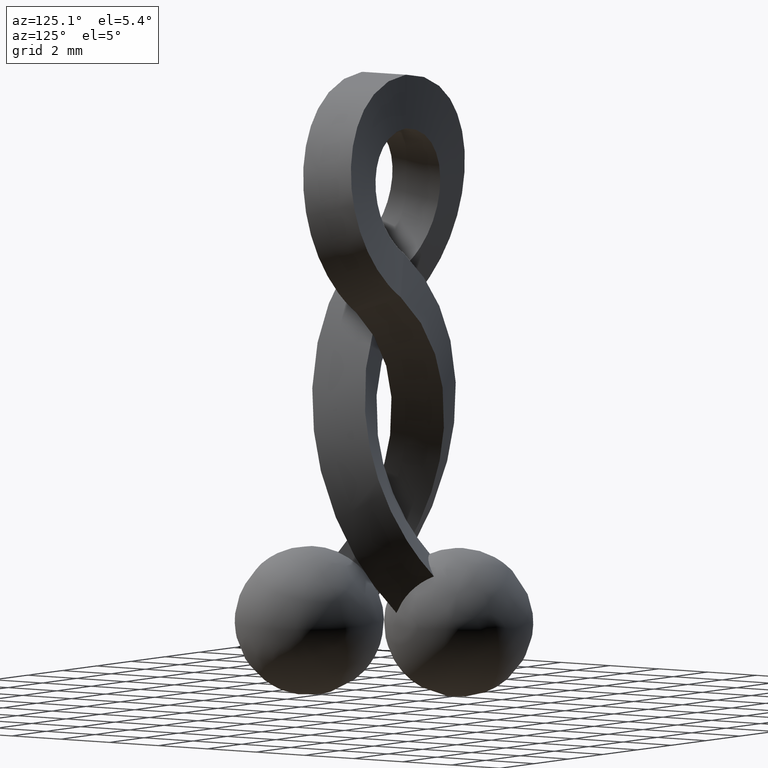
[diagram: clean part render]
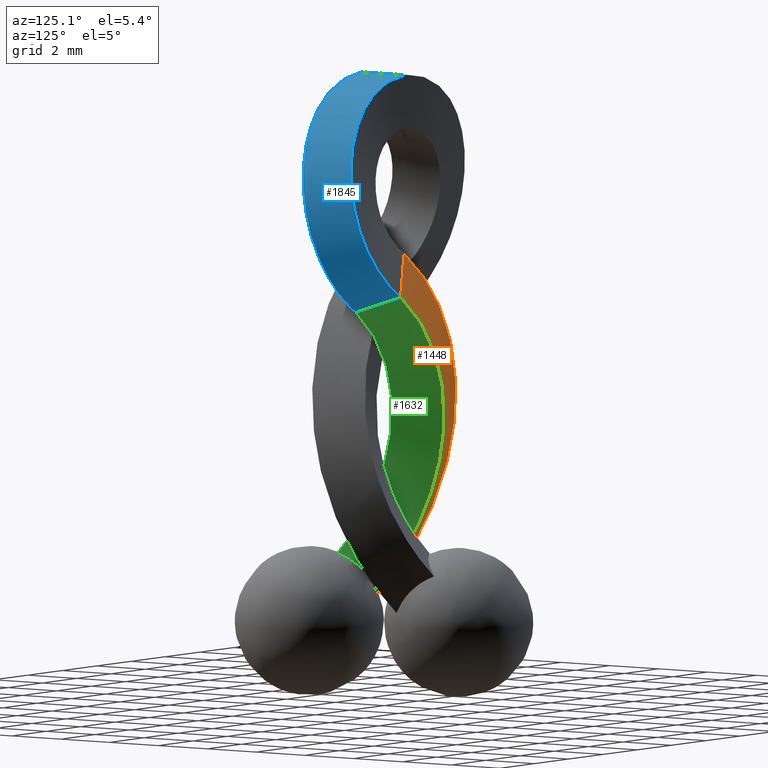
[diagram: same view with three faces highlighted in distinct colors, each labeled with its STEP entity id]
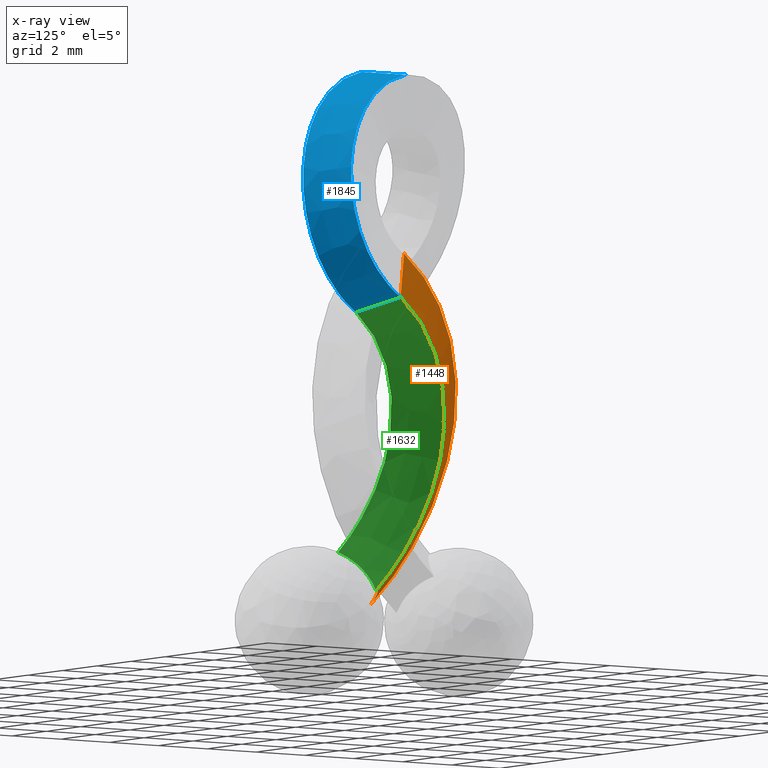
[diagram: x-ray of the same camera — body ghosted, the three highlighted faces saturated]
A machine part, auxiliary view with three faces highlighted in distinct colors.
The next image is the same camera in x-ray (body ghosted, the three faces saturated) — at least one of them is partly hidden behind the body in this view.
Their STEP definitions:

[orange] entity #1448 — the highlighted face is a freeform B-spline surface patch.
#209=CARTESIAN_POINT('',(0.187365948330412,-0.197707666171950,-13.245755313469999));
#210=VERTEX_POINT('',#209);
#245=CARTESIAN_POINT('',(-1.116100666478800,-1.293284365072966,-13.853364843217561));
#246=VERTEX_POINT('',#245);
#264=CARTESIAN_POINT('',(-1.116100666478800,-1.293284365072966,-13.853364843217561));
#265=CARTESIAN_POINT('',(-1.051939149386710,-1.184084527324290,-13.761739130561841));
#266=CARTESIAN_POINT('',(-0.975101844833864,-1.078532928553020,-13.679197981412040));
#267=CARTESIAN_POINT('',(-0.841521293309122,-0.924924080941385,-13.569271752839500));
#268=CARTESIAN_POINT('',(-0.793916599698335,-0.874516004852700,-13.534958756038350));
#269=CARTESIAN_POINT('',(-0.717758949630012,-0.800076888315602,-13.487157152708241));
#270=CARTESIAN_POINT('',(-0.691503831554263,-0.775394316801432,-13.471797919685431));
#271=CARTESIAN_POINT('',(-0.637937746768737,-0.726931430986019,-13.442644929944910));
#272=CARTESIAN_POINT('',(-0.610592293438438,-0.703111769414878,-13.428823073083979));
#273=CARTESIAN_POINT('',(-0.471107238251255,-0.586022609372301,-13.363435469588890));
#274=CARTESIAN_POINT('',(-0.350783818659769,-0.498700792684005,-13.322944776868320));
#275=CARTESIAN_POINT('',(-0.157135748750858,-0.377261716198525,-13.280070135765010));
#276=CARTESIAN_POINT('',(-0.090092124171693,-0.338249544083643,-13.268755335018909));
#277=CARTESIAN_POINT('',(0.046537282812526,-0.264730582817628,-13.252546318848120));
#278=CARTESIAN_POINT('',(0.116245415395587,-0.230121547297511,-13.247595765745590));
#279=CARTESIAN_POINT('',(0.187365948330412,-0.197707666171950,-13.245755313469999));
#280=B_SPLINE_CURVE_WITH_KNOTS('',3,(#264,#265,#266,#267,#268,#269,#270,#271,#272,#273,#274,#275,#276,#277,#278,#279),.UNSPECIFIED.,.F.,.U.,(4,2,2,2,2,2,2,4),(0.0,0.250000000000001,0.375000000000001,0.437500000000002,0.500000000000002,0.750000000000001,0.875000000000000,1.0),.UNSPECIFIED.);
#281=EDGE_CURVE('',#246,#210,#280,.T.);
#1331=CARTESIAN_POINT('',(1.250997394977785,1.648943568527589,-1.679905793471535));
#1332=CARTESIAN_POINT('',(1.621839122723317,1.842574230625029,-2.118367525646199));
#1333=CARTESIAN_POINT('',(1.992680850468845,2.036204892722486,-2.556829257820848));
#1334=CARTESIAN_POINT('',(2.363522578214372,2.229835554819927,-2.995290989995513));
#1335=CARTESIAN_POINT('',(1.228120817652917,1.651534840071966,-1.696786008469045));
#1336=CARTESIAN_POINT('',(1.598680056511240,1.845194873801081,-2.135464696391233));
#1337=CARTESIAN_POINT('',(1.969239295369562,2.038854907530203,-2.574143384313400));
#1338=CARTESIAN_POINT('',(2.339798534227880,2.232514941259319,-3.012822072235588));
#1339=CARTESIAN_POINT('',(1.204858485918635,1.654174392063804,-1.713936003400285));
#1340=CARTESIAN_POINT('',(1.575260104700396,1.847853925289049,-2.152725662932011));
#1341=CARTESIAN_POINT('',(1.945661723482160,2.041533458514293,-2.591515322463712));
#1342=CARTESIAN_POINT('',(2.316063342263917,2.235212991739541,-3.030304981995438));
#1343=CARTESIAN_POINT('',(1.051119438363262,1.671698860738548,-1.827020225537889));
#1344=CARTESIAN_POINT('',(1.425592504047764,1.865002914068105,-2.262527879023286));
#1345=CARTESIAN_POINT('',(1.800065569732230,2.058306967397675,-2.698035532508762));
#1346=CARTESIAN_POINT('',(2.174538635416729,2.251611020727231,-3.133543185994175));
#1347=CARTESIAN_POINT('',(0.905331565183985,1.686682722956729,-1.939552612296885));
#1348=CARTESIAN_POINT('',(1.289829574584254,1.879155174277839,-2.366677951473207));
#1349=CARTESIAN_POINT('',(1.674327583984510,2.071627625598937,-2.793803290649579));
#1350=CARTESIAN_POINT('',(2.058825593384789,2.264100076920014,-3.220928629825850));
#1351=CARTESIAN_POINT('',(0.374399363223709,1.733296400736359,-2.375156250922862));
#1352=CARTESIAN_POINT('',(0.784825541600758,1.924120733965117,-2.778972559420545));
#1353=CARTESIAN_POINT('',(1.195251719977834,2.114945067193888,-3.182788867918087));
#1354=CARTESIAN_POINT('',(1.605677898354852,2.305769400422724,-3.586605176415718));
#1355=CARTESIAN_POINT('',(-0.495209413692294,1.770699031932914,-3.214851318049503));
#1356=CARTESIAN_POINT('',(-0.042631161961025,1.960894531129384,-3.574127616650814));
#1357=CARTESIAN_POINT('',(0.409947089770205,2.151090030325883,-3.933403915252340));
#1358=CARTESIAN_POINT('',(0.862525341501510,2.341285529522209,-4.292680213854013));
#1359=CARTESIAN_POINT('',(-1.193607924372798,1.703645794864529,-4.203905079947227));
#1360=CARTESIAN_POINT('',(-0.707962947606726,1.898498327814846,-4.511548950281964));
#1361=CARTESIAN_POINT('',(-0.222317970840671,2.093350860765094,-4.819192820616476));
#1362=CARTESIAN_POINT('',(0.263327005925418,2.288203393715499,-5.126836690951098));
#1363=CARTESIAN_POINT('',(-2.190198932032244,1.489370625824567,-5.999614895971046));
#1364=CARTESIAN_POINT('',(-1.658329362050116,1.697173761336061,-6.214207043483224));
#1365=CARTESIAN_POINT('',(-1.126459792067992,1.904976896847685,-6.428799190995925));
#1366=CARTESIAN_POINT('',(-0.594590222085865,2.112780032358915,-6.643391338508623));
#1367=CARTESIAN_POINT('',(-2.582548973555014,1.212519297309548,-7.330449936081854));
#1368=CARTESIAN_POINT('',(-2.034040181010712,1.435655198972743,-7.476961528563183));
#1369=CARTESIAN_POINT('',(-1.485531388466672,1.658791100636071,-7.623473121043474));
#1370=CARTESIAN_POINT('',(-0.937022595922627,1.881927002299135,-7.769984713523761));
#1371=CARTESIAN_POINT('',(-2.738264674189206,0.450730014212593,-9.971509800327373));
#1372=CARTESIAN_POINT('',(-2.188432078672312,0.714611237159715,-9.984501143055585));
#1373=CARTESIAN_POINT('',(-1.638599483155115,0.978492460106687,-9.997492485784791));
#1374=CARTESIAN_POINT('',(-1.088766887637973,1.242373683053934,-10.010483828514021));
#1375=CARTESIAN_POINT('',(-2.392379661954175,-0.256613487255500,-11.881839034839540));
#1376=CARTESIAN_POINT('',(-1.864921381167240,0.044334038123233,-11.799420443237100));
#1377=CARTESIAN_POINT('',(-1.337463100380630,0.345281563502483,-11.717001851635890));
#1378=CARTESIAN_POINT('',(-0.810004819594130,0.646229088880802,-11.634583260033040));
#1379=CARTESIAN_POINT('',(-1.430669774141974,-1.072384817551527,-13.463100613227789));
#1380=CARTESIAN_POINT('',(-0.956100005331421,-0.729569155989037,-13.303427348111519));
#1381=CARTESIAN_POINT('',(-0.481530236520313,-0.386753494427110,-13.143754082993610));
#1382=CARTESIAN_POINT('',(-0.006960467709508,-0.043937832864306,-12.984080817877420));
#1383=CARTESIAN_POINT('',(-1.075349115802295,-1.333730370942182,-13.917503742380820));
#1384=CARTESIAN_POINT('',(-0.619995522014444,-0.977575410494956,-13.735831096333831));
#1385=CARTESIAN_POINT('',(-0.164641928225385,-0.621420450048644,-13.554158450284341));
#1386=CARTESIAN_POINT('',(0.290711665562673,-0.265265489601053,-13.372485804237369));
#1387=B_SPLINE_SURFACE_WITH_KNOTS('',3,3,((#1331,#1335,#1339,#1343,#1347,#1351,#1355,#1359,#1363,#1367,#1371,#1375,#1379,#1383),(#1332,#1336,#1340,#1344,#1348,#1352,#1356,#1360,#1364,#1368,#1372,#1376,#1380,#1384),(#1333,#1337,#1341,#1345,#1349,#1353,#1357,#1361,#1365,#1369,#1373,#1377,#1381,#1385),(#1334,#1338,#1342,#1346,#1350,#1354,#1358,#1362,#1366,#1370,#1374,#1378,#1382,#1386)),.UNSPECIFIED.,.F.,.F.,.U.,(4,4),(4,2,2,1,2,2,1,4),(0.0,1.818072055312638),(0.0,0.106390014873145,0.634835904268965,2.220173572456424,4.333957130039702,8.561524245206259,12.789091360372820,14.734910422062290),.UNSPECIFIED.);
#1388=ORIENTED_EDGE('',*,*,#281,.F.);
#1389=CARTESIAN_POINT('',(1.197166862828958,1.658578816912535,-1.730195228560345));
#1390=VERTEX_POINT('',#1389);
#1391=CARTESIAN_POINT('',(1.197166862828958,1.658578816912535,-1.730195228560345));
#1392=CARTESIAN_POINT('',(1.193048124222506,1.659047703463243,-1.733226724150942));
#1393=CARTESIAN_POINT('',(1.188871184843763,1.659523522335898,-1.736300063238846));
#1394=CARTESIAN_POINT('',(1.056702326652314,1.674590164805526,-1.833514082299842));
#1395=CARTESIAN_POINT('',(0.911060054960940,1.689564906574013,-1.945913936628654));
#1396=CARTESIAN_POINT('',(0.645781964092629,1.712852819887063,-2.163567030734261));
#1397=CARTESIAN_POINT('',(0.515978598182526,1.722399896108490,-2.276056201850243));
#1398=CARTESIAN_POINT('',(0.135731945107929,1.744703483129441,-2.623938594197198));
#1399=CARTESIAN_POINT('',(-0.105538211706550,1.751114642366290,-2.869760979798006));
#1400=CARTESIAN_POINT('',(-0.787606701772308,1.744842982440880,-3.643766208971925));
#1401=CARTESIAN_POINT('',(-1.186364275153282,1.706551756681532,-4.208491672889468));
#1402=CARTESIAN_POINT('',(-2.182286333342149,1.492469752243953,-6.002818310297073));
#1403=CARTESIAN_POINT('',(-2.574391652711865,1.215843849951445,-7.332639353026374));
#1404=CARTESIAN_POINT('',(-2.730072781926019,0.454639363183059,-9.971740530448306));
#1405=CARTESIAN_POINT('',(-2.493520313447824,-0.029312003120211,-11.278846095434471));
#1406=CARTESIAN_POINT('',(-1.737220043088290,-0.799416434491244,-12.939062034076450));
#1407=CARTESIAN_POINT('',(-1.450766828229126,-1.044184820358264,-13.415832169242790));
#1408=CARTESIAN_POINT('',(-1.116100666478800,-1.293284365072966,-13.853364843217561));
#1409=B_SPLINE_CURVE_WITH_KNOTS('',3,(#1391,#1392,#1393,#1394,#1395,#1396,#1397,#1398,#1399,#1400,#1401,#1402,#1403,#1404,#1405,#1406,#1407,#1408),.UNSPECIFIED.,.F.,.U.,(4,2,2,2,2,2,2,2,4),(-0.001036884601919,0.0,0.031250000000000,0.062500000000000,0.125000000000000,0.250000000000000,0.500000000000000,0.750000000000000,0.859901148939581),.UNSPECIFIED.);
#1410=EDGE_CURVE('',#1390,#246,#1409,.T.);
#1411=ORIENTED_EDGE('',*,*,#1410,.F.);
#1412=CARTESIAN_POINT('',(2.221295444274015,2.242601739820090,-3.089225805483630));
#1413=VERTEX_POINT('',#1412);
#1414=CARTESIAN_POINT('',(2.221295444274015,2.242601739820090,-3.089225805483630));
#1415=CARTESIAN_POINT('',(2.135455382526934,2.193562330840395,-2.975080559637316));
#1416=CARTESIAN_POINT('',(2.049552932902321,2.144534037977005,-2.860977643932547));
#1417=CARTESIAN_POINT('',(1.963616822598833,2.095511858400784,-2.746897586311317));
#1418=CARTESIAN_POINT('',(1.877680718425901,2.046489682321735,-2.632817536828392));
#1419=CARTESIAN_POINT('',(1.791710777485291,1.997473642615616,-2.518760446391113));
#1420=CARTESIAN_POINT('',(1.705734442494077,1.948458959118404,-2.404707618855502));
#1421=CARTESIAN_POINT('',(1.536234190478744,1.851827703481859,-2.179855245090990));
#1422=CARTESIAN_POINT('',(1.366872048778237,1.755174081214445,-1.954907805158415));
#1423=CARTESIAN_POINT('',(1.197166862828958,1.658578816912535,-1.730195228560345));
#1424=B_SPLINE_CURVE_WITH_KNOTS('',3,(#1414,#1415,#1416,#1417,#1418,#1419,#1420,#1421,#1422,#1423),.UNSPECIFIED.,.F.,.U.,(4,3,3,4),(0.0,0.000452979638718,0.000905959226432,0.001798997456039),.UNSPECIFIED.);
#1425=EDGE_CURVE('',#1413,#1390,#1424,.T.);
#1426=ORIENTED_EDGE('',*,*,#1425,.F.);
#1427=CARTESIAN_POINT('',(2.221295444274015,2.242601739820090,-3.089225805483630));
#1428=CARTESIAN_POINT('',(2.125969881719033,2.253342588289417,-3.159748152407557));
#1429=CARTESIAN_POINT('',(2.032024838796250,2.263206183396222,-3.231588228358451));
#1430=CARTESIAN_POINT('',(1.826337623907148,2.282109573049236,-3.397603924858196));
#1431=CARTESIAN_POINT('',(1.715331819397314,2.290751414845497,-3.492255637011788));
#1432=CARTESIAN_POINT('',(1.390014400105739,2.311298287032385,-3.785134638820405));
#1433=CARTESIAN_POINT('',(1.183410894042757,2.317818127735772,-3.992298012229599));
#1434=CARTESIAN_POINT('',(0.598756995098599,2.315709234347855,-4.645168035644137));
#1435=CARTESIAN_POINT('',(0.256116774605315,2.285323747065436,-5.122260719066810));
#1436=CARTESIAN_POINT('',(-0.602502116356110,2.109706175388952,-6.640201649130565));
#1437=CARTESIAN_POINT('',(-0.945183225299918,1.878621388537423,-7.767807641083852));
#1438=CARTESIAN_POINT('',(-1.096932855810851,1.238441243465682,-10.010318306804891));
#1439=CARTESIAN_POINT('',(-0.905876338536688,0.829873381637522,-11.123375193984421));
#1440=CARTESIAN_POINT('',(-0.289382292982021,0.191493173761474,-12.511152809843830));
#1441=CARTESIAN_POINT('',(-0.069088392965085,-0.001293906045880,-12.892555423470920));
#1442=CARTESIAN_POINT('',(0.187365948330412,-0.197707666171950,-13.245755313469999));
#1443=B_SPLINE_CURVE_WITH_KNOTS('',3,(#1427,#1428,#1429,#1430,#1431,#1432,#1433,#1434,#1435,#1436,#1437,#1438,#1439,#1440,#1441,#1442),.UNSPECIFIED.,.F.,.U.,(4,2,2,2,2,2,2,4),(0.133391573818187,0.158830783371632,0.190080783371632,0.252580783371632,0.377580783371632,0.627580783371632,0.877580783371632,0.980010228467055),.UNSPECIFIED.);
#1444=EDGE_CURVE('',#1413,#210,#1443,.T.);
#1445=ORIENTED_EDGE('',*,*,#1444,.T.);
#1446=EDGE_LOOP('',(#1388,#1411,#1426,#1445));
#1447=FACE_OUTER_BOUND('',#1446,.T.);
#1448=ADVANCED_FACE('',(#1447),#1387,.T.);

[blue] entity #1845 — the highlighted face is a freeform B-spline surface patch.
#1242=CARTESIAN_POINT('',(0.037481139247082,-0.901063248153303,4.149609535830205));
#1243=VERTEX_POINT('',#1242);
#1281=CARTESIAN_POINT('',(0.040696104870746,0.898848638762552,4.150045592310344));
#1282=VERTEX_POINT('',#1281);
#1321=CARTESIAN_POINT('',(0.037481139247082,-0.901063248153303,4.149609535830205));
#1322=CARTESIAN_POINT('',(0.038728928112110,-0.301092624907741,4.149725905478709));
#1323=CARTESIAN_POINT('',(0.039800559339484,0.298878031482434,4.149871121260658));
#1324=CARTESIAN_POINT('',(0.040696104870746,0.898848638762552,4.150045592310344));
#1325=QUASI_UNIFORM_CURVE('',3,(#1321,#1322,#1323,#1324),.UNSPECIFIED.,.F.,.U.);
#1326=EDGE_CURVE('',#1243,#1282,#1325,.T.);
#1412=CARTESIAN_POINT('',(2.221295444274015,2.242601739820090,-3.089225805483630));
#1413=VERTEX_POINT('',#1412);
#1596=CARTESIAN_POINT('',(2.411460444258520,0.551425846800978,-3.675844381211625));
#1597=VERTEX_POINT('',#1596);
#1598=CARTESIAN_POINT('',(2.221295444274015,2.242601739820090,-3.089225805483630));
#1599=CARTESIAN_POINT('',(2.250904984772668,1.961030993496815,-3.188514764424261));
#1600=CARTESIAN_POINT('',(2.281459031402204,1.679323473205865,-3.287123057796391));
#1601=CARTESIAN_POINT('',(2.329310285238189,1.256484355535253,-3.433555516878741));
#1602=CARTESIAN_POINT('',(2.345581460064278,1.115493940590159,-3.482131176732441));
#1603=CARTESIAN_POINT('',(2.370216482880057,0.903977865894764,-3.554825646876809));
#1604=CARTESIAN_POINT('',(2.378462696947199,0.833467892868871,-3.579031556237958));
#1605=CARTESIAN_POINT('',(2.394951340205510,0.692448318168596,-3.627445784694800));
#1606=CARTESIAN_POINT('',(2.403100520628842,0.621951036063212,-3.651722814319169));
#1607=CARTESIAN_POINT('',(2.411460444258520,0.551425846800978,-3.675844381211625));
#1608=B_SPLINE_CURVE_WITH_KNOTS('',3,(#1598,#1599,#1600,#1601,#1602,#1603,#1604,#1605,#1606,#1607),.UNSPECIFIED.,.F.,.U.,(4,2,2,2,4),(0.0,0.500000000000000,0.750000000000000,0.875000000000000,1.0),.UNSPECIFIED.);
#1609=EDGE_CURVE('',#1413,#1597,#1608,.T.);
#1725=CARTESIAN_POINT('',(-0.037471593387728,0.910148728138404,4.150338607856991));
#1726=CARTESIAN_POINT('',(-0.038554309345859,0.304120975269487,4.150511870621430));
#1727=CARTESIAN_POINT('',(-0.039637025303991,-0.301906777599432,4.150685133385865));
#1728=CARTESIAN_POINT('',(-0.040719741262122,-0.907934530468349,4.150858396150304));
#1729=CARTESIAN_POINT('',(0.817827378527472,0.883320510275815,4.146773818838500));
#1730=CARTESIAN_POINT('',(0.841476780051199,0.277246014040244,4.143112572112566));
#1731=CARTESIAN_POINT('',(0.865126181574930,-0.328828482195309,4.139451325386319));
#1732=CARTESIAN_POINT('',(0.888775583098657,-0.934902978430882,4.135790078660388));
#1733=CARTESIAN_POINT('',(1.671137206750398,0.910678303347335,3.866194052417570));
#1734=CARTESIAN_POINT('',(1.718207754130709,0.306160621701024,3.850706672755244));
#1735=CARTESIAN_POINT('',(1.765278301510857,-0.298357059945259,3.835219293092767));
#1736=CARTESIAN_POINT('',(1.812348848891162,-0.902874741591502,3.819731913430447));
#1737=CARTESIAN_POINT('',(3.036945439165738,1.061875489132543,2.867345401188435));
#1738=CARTESIAN_POINT('',(3.119016410468207,0.463031689917222,2.817052036703624));
#1739=CARTESIAN_POINT('',(3.201087381770830,-0.135812109298128,2.766758672218966));
#1740=CARTESIAN_POINT('',(3.283158353073298,-0.734655908513516,2.716465307734153));
#1741=CARTESIAN_POINT('',(3.550784010149470,1.183917478192209,2.158055499816613));
#1742=CARTESIAN_POINT('',(3.644513664902852,0.589138669639233,2.085035753058024));
#1743=CARTESIAN_POINT('',(3.738243319655931,-0.005640138913726,2.012016006299518));
#1744=CARTESIAN_POINT('',(3.831972974409160,-0.600418947466626,1.938996259540935));
#1745=CARTESIAN_POINT('',(4.058759706760347,1.476489340953346,0.576900823664516));
#1746=CARTESIAN_POINT('',(4.160033457078447,0.890822459626720,0.456000474971600));
#1747=CARTESIAN_POINT('',(4.261307207396857,0.305155578300074,0.335100126278605));
#1748=CARTESIAN_POINT('',(4.362580957715113,-0.280511303026630,0.214199777585688));
#1749=CARTESIAN_POINT('',(4.051602308366449,1.646273696639357,-0.290934905874045));
#1750=CARTESIAN_POINT('',(4.148742243790083,1.065630533178726,-0.436867465973574));
#1751=CARTESIAN_POINT('',(4.245882179213715,0.484987369718134,-0.582800026073182));
#1752=CARTESIAN_POINT('',(4.343022114637348,-0.095655793742497,-0.728732586172636));
#1753=CARTESIAN_POINT('',(3.651173093095872,1.888708941151723,-1.465844959462860));
#1754=CARTESIAN_POINT('',(3.731410389294739,1.314897864803010,-1.643962365338066));
#1755=CARTESIAN_POINT('',(3.811647685493612,0.741086788454301,-1.822079771213215));
#1756=CARTESIAN_POINT('',(3.891884981692483,0.167275712105602,-2.000197177088440));
#1757=CARTESIAN_POINT('',(3.307012237392746,2.026344900123494,-2.113624525019844));
#1758=CARTESIAN_POINT('',(3.374360148765535,1.456310373641397,-2.308948531700689));
#1759=CARTESIAN_POINT('',(3.441708060138322,0.886275847159365,-2.504272538381519));
#1760=CARTESIAN_POINT('',(3.509055971511109,0.316241320677301,-2.699596545062294));
#1761=CARTESIAN_POINT('',(2.798328632616382,2.145966724815307,-2.642102148866591));
#1762=CARTESIAN_POINT('',(2.848566468392332,1.579031172361609,-2.850469478090544));
#1763=CARTESIAN_POINT('',(2.898804304168293,1.012095619907863,-3.058836807314513));
#1764=CARTESIAN_POINT('',(2.949042139944248,0.445160067454141,-3.267204136538530));
#1765=CARTESIAN_POINT('',(2.475557646192437,2.207965010269348,-2.906265354402434));
#1766=CARTESIAN_POINT('',(2.515260774114350,1.642583897773311,-3.120853613821388));
#1767=CARTESIAN_POINT('',(2.554963902036251,1.077202785277280,-3.335441873240349));
#1768=CARTESIAN_POINT('',(2.594667029958163,0.511821672781245,-3.550030132659280));
#1769=CARTESIAN_POINT('',(2.385150619567653,2.224344118667050,-2.975207837968435));
#1770=CARTESIAN_POINT('',(2.420779577369385,1.659509957662857,-3.191924504885011));
#1771=CARTESIAN_POINT('',(2.456408535171117,1.094675796658664,-3.408641171801571));
#1772=CARTESIAN_POINT('',(2.492037492972814,0.529841635654483,-3.625357838718147));
#1773=CARTESIAN_POINT('',(2.258411361107304,2.245285810946284,-3.061518718943899));
#1774=CARTESIAN_POINT('',(2.291826138988914,1.680734793214507,-3.279319901098540));
#1775=CARTESIAN_POINT('',(2.325240916870528,1.116183775482727,-3.497121083253189));
#1776=CARTESIAN_POINT('',(2.358655694752162,0.551632757750943,-3.714922265407825));
#1777=CARTESIAN_POINT('',(2.220031236627897,2.251407940764922,-3.086532089001061));
#1778=CARTESIAN_POINT('',(2.254395094492203,1.686719968320336,-3.303788617876289));
#1779=CARTESIAN_POINT('',(2.288758952356512,1.122031995875748,-3.521045146751517));
#1780=CARTESIAN_POINT('',(2.323122810220815,0.557344023431160,-3.738301675626742));
#1781=CARTESIAN_POINT('',(2.176532507774786,2.258406658436978,-3.115189024403075));
#1782=CARTESIAN_POINT('',(2.210961256215900,1.693716311995159,-3.332444090815554));
#1783=CARTESIAN_POINT('',(2.245390004657017,1.129025965553338,-3.549699157228035));
#1784=CARTESIAN_POINT('',(2.279818753098125,0.564335619111517,-3.766954223640511));
#1785=B_SPLINE_SURFACE_WITH_KNOTS('',3,3,((#1725,#1729,#1733,#1737,#1741,#1745,#1749,#1753,#1757,#1761,#1765,#1769,#1773,#1777,#1781),(#1726,#1730,#1734,#1738,#1742,#1746,#1750,#1754,#1758,#1762,#1766,#1770,#1774,#1778,#1782),(#1727,#1731,#1735,#1739,#1743,#1747,#1751,#1755,#1759,#1763,#1767,#1771,#1775,#1779,#1783),(#1728,#1732,#1736,#1740,#1744,#1748,#1752,#1756,#1760,#1764,#1768,#1772,#1776,#1780,#1784)),.UNSPECIFIED.,.F.,.F.,.U.,(4,4),(4,2,2,2,1,2,2,4),(0.0,1.818086286028770),(0.0,2.902652650820210,5.762912224470705,8.623171798121211,10.053301584946460,11.125898925065400,11.483431371771710,11.700923871365690),.UNSPECIFIED.);
#1786=CARTESIAN_POINT('',(0.040696104870746,0.898848638762552,4.150045592310344));
#1787=CARTESIAN_POINT('',(0.870037170091843,0.876022553574906,4.130197115646644));
#1788=CARTESIAN_POINT('',(1.692806521131018,0.903991793496335,3.851367838723572));
#1789=CARTESIAN_POINT('',(3.038162215981699,1.052901567021632,2.867195084230898));
#1790=CARTESIAN_POINT('',(3.552164946757581,1.174971905480817,2.157482166010067));
#1791=CARTESIAN_POINT('',(4.060234328836142,1.467614522609108,0.575443926641798));
#1792=CARTESIAN_POINT('',(4.053006217339526,1.637441102971734,-0.292850097794205));
#1793=CARTESIAN_POINT('',(3.652291698622571,1.879940718922749,-1.468353618283843));
#1794=CARTESIAN_POINT('',(3.455591519427889,1.958601750978373,-1.838660358966004));
#1795=CARTESIAN_POINT('',(3.079705520164786,2.067791218791145,-2.335729658800281));
#1796=CARTESIAN_POINT('',(2.941056326358218,2.102712453545000,-2.491665007614790));
#1797=CARTESIAN_POINT('',(2.715615221735765,2.152233130555347,-2.708039825273183));
#1798=CARTESIAN_POINT('',(2.637561127957381,2.168264132388529,-2.777249059248445));
#1799=CARTESIAN_POINT('',(2.476089239898706,2.199280323272870,-2.909428938700424));
#1800=CARTESIAN_POINT('',(2.385616496576017,2.215663715671451,-2.978395178995155));
#1801=CARTESIAN_POINT('',(2.275586975701117,2.233841606623698,-3.053325093518170));
#1802=CARTESIAN_POINT('',(2.248439836378375,2.238233856192536,-3.071337597971630));
#1803=CARTESIAN_POINT('',(2.221295444274015,2.242601739820090,-3.089225805483630));
#1804=B_SPLINE_CURVE_WITH_KNOTS('',3,(#1786,#1787,#1788,#1789,#1790,#1791,#1792,#1793,#1794,#1795,#1796,#1797,#1798,#1799,#1800,#1801,#1802,#1803),.UNSPECIFIED.,.F.,.U.,(4,2,2,2,2,2,2,2,4),(0.007697852482460,0.252768754986897,0.501845836657931,0.750922918328966,0.875461459164483,0.937730729582241,0.968865364791121,1.0,1.012326238503809),.UNSPECIFIED.);
#1805=EDGE_CURVE('',#1282,#1413,#1804,.T.);
#1806=ORIENTED_EDGE('',*,*,#1805,.F.);
#1807=ORIENTED_EDGE('',*,*,#1326,.F.);
#1808=CARTESIAN_POINT('',(2.632790913499072,0.512879872861119,-3.515266646067357));
#1809=VERTEX_POINT('',#1808);
#1810=CARTESIAN_POINT('',(0.037481139247082,-0.901063248153303,4.149609535830205));
#1811=CARTESIAN_POINT('',(0.924676223477759,-0.923664686973370,4.119190938349147));
#1812=CARTESIAN_POINT('',(1.806353252779629,-0.892523727041362,3.812987432821562));
#1813=CARTESIAN_POINT('',(2.519006465379746,-0.813119128299993,3.289182562796487));
#1814=CARTESIAN_POINT('',(3.233116429008169,-0.733552216769145,2.764306971038106));
#1815=CARTESIAN_POINT('',(3.778020474590818,-0.605497575548605,2.020337275721716));
#1816=CARTESIAN_POINT('',(4.059541195586552,-0.452374548871218,1.190230208688279));
#1817=CARTESIAN_POINT('',(4.340992022734854,-0.299289538427333,0.360329234394623));
#1818=CARTESIAN_POINT('',(4.354387436629180,-0.121680092241499,-0.552129439122483));
#1819=CARTESIAN_POINT('',(4.102076839395966,0.049709909064522,-1.387802847599005));
#1820=CARTESIAN_POINT('',(3.848706631349788,0.221819684730436,-2.226985774064219));
#1821=CARTESIAN_POINT('',(3.332219482268588,0.384716553126314,-2.974507862560849));
#1822=CARTESIAN_POINT('',(2.632790913499072,0.512879872861119,-3.515266646067357));
#1823=B_SPLINE_CURVE_WITH_KNOTS('',3,(#1810,#1811,#1812,#1813,#1814,#1815,#1816,#1817,#1818,#1819,#1820,#1821,#1822),.UNSPECIFIED.,.F.,.U.,(4,3,3,3,4),(0.0,2.664012218878280,5.333470007173293,8.002265042564289,10.682268026048209),.UNSPECIFIED.);
#1824=EDGE_CURVE('',#1243,#1809,#1823,.T.);
#1825=ORIENTED_EDGE('',*,*,#1824,.T.);
#1826=CARTESIAN_POINT('',(2.571775258207821,0.523901025723761,-3.561626768921512));
#1827=VERTEX_POINT('',#1826);
#1828=CARTESIAN_POINT('',(2.632790913499072,0.512879872861119,-3.515266646067357));
#1829=CARTESIAN_POINT('',(2.612642458258917,0.516571876628779,-3.530844297069474));
#1830=CARTESIAN_POINT('',(2.592186052136250,0.520265709978072,-3.546380840882558));
#1831=CARTESIAN_POINT('',(2.571775258207821,0.523901025723761,-3.561626768921512));
#1832=B_SPLINE_CURVE_WITH_KNOTS('',3,(#1828,#1829,#1830,#1831),.UNSPECIFIED.,.F.,.U.,(4,4),(0.0,0.077202909013574),.UNSPECIFIED.);
#1833=EDGE_CURVE('',#1809,#1827,#1832,.T.);
#1834=ORIENTED_EDGE('',*,*,#1833,.T.);
#1835=CARTESIAN_POINT('',(2.571775258207821,0.523901025723761,-3.561626768921512));
#1836=CARTESIAN_POINT('',(2.520544799146236,0.533025555378928,-3.599893574955335));
#1837=CARTESIAN_POINT('',(2.464551808874180,0.542739933358887,-3.640094873074554));
#1838=CARTESIAN_POINT('',(2.411460444258520,0.551425846800978,-3.675844381211625));
#1839=B_SPLINE_CURVE_WITH_KNOTS('',3,(#1835,#1836,#1837,#1838),.UNSPECIFIED.,.F.,.U.,(4,4),(0.0,0.193776904686989),.UNSPECIFIED.);
#1840=EDGE_CURVE('',#1827,#1597,#1839,.T.);
#1841=ORIENTED_EDGE('',*,*,#1840,.T.);
#1842=ORIENTED_EDGE('',*,*,#1609,.F.);
#1843=EDGE_LOOP('',(#1806,#1807,#1825,#1834,#1841,#1842));
#1844=FACE_OUTER_BOUND('',#1843,.T.);
#1845=ADVANCED_FACE('',(#1844),#1785,.T.);

[green] entity #1632 — the highlighted face is a freeform B-spline surface patch.
#209=CARTESIAN_POINT('',(0.187365948330412,-0.197707666171950,-13.245755313469999));
#210=VERTEX_POINT('',#209);
#211=CARTESIAN_POINT('',(0.657491439051927,-1.417299756467276,-11.994778617612900));
#212=VERTEX_POINT('',#211);
#213=CARTESIAN_POINT('',(0.187365948330411,-0.197707666171949,-13.245755313469999));
#214=CARTESIAN_POINT('',(0.191825561108099,-0.267382023275011,-13.106048539562650));
#215=CARTESIAN_POINT('',(0.206212875228469,-0.345901673045128,-12.974420041253261));
#216=CARTESIAN_POINT('',(0.252517118538662,-0.520171432898224,-12.726562867938370));
#217=CARTESIAN_POINT('',(0.284441562416608,-0.615921915084131,-12.610335852671970));
#218=CARTESIAN_POINT('',(0.366018238235765,-0.825973442296277,-12.394248576698580));
#219=CARTESIAN_POINT('',(0.414286045230814,-0.936726671208481,-12.298061945655890));
#220=CARTESIAN_POINT('',(0.497286466168865,-1.110925992209072,-12.171055447944710));
#221=CARTESIAN_POINT('',(0.526742700382461,-1.170355930958676,-12.131606707625981));
#222=CARTESIAN_POINT('',(0.589372807412689,-1.291966412588508,-12.058598821255240));
#223=CARTESIAN_POINT('',(0.622638408444846,-1.354304698464043,-12.024980235827170));
#224=CARTESIAN_POINT('',(0.657491439051927,-1.417299756467276,-11.994778617612900));
#225=B_SPLINE_CURVE_WITH_KNOTS('',3,(#213,#214,#215,#216,#217,#218,#219,#220,#221,#222,#223,#224),.UNSPECIFIED.,.F.,.U.,(4,2,2,2,2,4),(0.0,0.250000000000000,0.500000000000000,0.750000000000000,0.875000000000000,1.0),.UNSPECIFIED.);
#226=EDGE_CURVE('',#210,#212,#225,.T.);
#1412=CARTESIAN_POINT('',(2.221295444274015,2.242601739820090,-3.089225805483630));
#1413=VERTEX_POINT('',#1412);
#1427=CARTESIAN_POINT('',(2.221295444274015,2.242601739820090,-3.089225805483630));
#1428=CARTESIAN_POINT('',(2.125969881719033,2.253342588289417,-3.159748152407557));
#1429=CARTESIAN_POINT('',(2.032024838796250,2.263206183396222,-3.231588228358451));
#1430=CARTESIAN_POINT('',(1.826337623907148,2.282109573049236,-3.397603924858196));
#1431=CARTESIAN_POINT('',(1.715331819397314,2.290751414845497,-3.492255637011788));
#1432=CARTESIAN_POINT('',(1.390014400105739,2.311298287032385,-3.785134638820405));
#1433=CARTESIAN_POINT('',(1.183410894042757,2.317818127735772,-3.992298012229599));
#1434=CARTESIAN_POINT('',(0.598756995098599,2.315709234347855,-4.645168035644137));
#1435=CARTESIAN_POINT('',(0.256116774605315,2.285323747065436,-5.122260719066810));
#1436=CARTESIAN_POINT('',(-0.602502116356110,2.109706175388952,-6.640201649130565));
#1437=CARTESIAN_POINT('',(-0.945183225299918,1.878621388537423,-7.767807641083852));
#1438=CARTESIAN_POINT('',(-1.096932855810851,1.238441243465682,-10.010318306804891));
#1439=CARTESIAN_POINT('',(-0.905876338536688,0.829873381637522,-11.123375193984421));
#1440=CARTESIAN_POINT('',(-0.289382292982021,0.191493173761474,-12.511152809843830));
#1441=CARTESIAN_POINT('',(-0.069088392965085,-0.001293906045880,-12.892555423470920));
#1442=CARTESIAN_POINT('',(0.187365948330412,-0.197707666171950,-13.245755313469999));
#1443=B_SPLINE_CURVE_WITH_KNOTS('',3,(#1427,#1428,#1429,#1430,#1431,#1432,#1433,#1434,#1435,#1436,#1437,#1438,#1439,#1440,#1441,#1442),.UNSPECIFIED.,.F.,.U.,(4,2,2,2,2,2,2,4),(0.133391573818187,0.158830783371632,0.190080783371632,0.252580783371632,0.377580783371632,0.627580783371632,0.877580783371632,0.980010228467055),.UNSPECIFIED.);
#1444=EDGE_CURVE('',#1413,#210,#1443,.T.);
#1545=CARTESIAN_POINT('',(2.277664382221885,2.244507438032125,-3.044131414860055));
#1546=CARTESIAN_POINT('',(2.340490550219806,1.675316065736262,-3.242429409224289));
#1547=CARTESIAN_POINT('',(2.403316718217726,1.106124693440404,-3.440727403588528));
#1548=CARTESIAN_POINT('',(2.466142886215649,0.536933321144547,-3.639025397952767));
#1549=CARTESIAN_POINT('',(2.162586130310646,2.257798447707727,-3.128216247036175));
#1550=CARTESIAN_POINT('',(2.228977693772546,1.688150023118382,-3.324055802642024));
#1551=CARTESIAN_POINT('',(2.295369257234481,1.118501598529065,-3.519895358247903));
#1552=CARTESIAN_POINT('',(2.361760820696417,0.548853173939765,-3.715734913853751));
#1553=CARTESIAN_POINT('',(2.049332094238354,2.269978960060630,-3.213884491112316));
#1554=CARTESIAN_POINT('',(2.125345028261982,1.699169419258267,-3.402855651786472));
#1555=CARTESIAN_POINT('',(2.201357962285637,1.128359878455904,-3.591826812460653));
#1556=CARTESIAN_POINT('',(2.277370896309232,0.557550337653543,-3.780797973134736));
#1557=CARTESIAN_POINT('',(1.598053649931404,2.311470118718149,-3.578072953891254));
#1558=CARTESIAN_POINT('',(1.699730324745656,1.737998693197284,-3.747312941242217));
#1559=CARTESIAN_POINT('',(1.801406999559899,1.164527267676443,-3.916552928593065));
#1560=CARTESIAN_POINT('',(1.903083674374202,0.591055842155608,-4.085792915944076));
#1561=CARTESIAN_POINT('',(0.853640873072516,2.347034273417934,-4.285384882727326));
#1562=CARTESIAN_POINT('',(0.997804210208433,1.770960627318833,-4.416110974850397));
#1563=CARTESIAN_POINT('',(1.141967547344165,1.194886981219622,-4.546837066973602));
#1564=CARTESIAN_POINT('',(1.286130884480067,0.618813335120419,-4.677563159096760));
#1565=CARTESIAN_POINT('',(0.253434365184900,2.293847778745041,-5.120993623240319));
#1566=CARTESIAN_POINT('',(0.432234059025092,1.720129649677550,-5.205812163029799));
#1567=CARTESIAN_POINT('',(0.611033752865496,1.146411520610087,-5.290630702819340));
#1568=CARTESIAN_POINT('',(0.789833446705846,0.572693391542662,-5.375449242609211));
#1569=CARTESIAN_POINT('',(-0.605916481020534,2.118100682853665,-6.640181658959460));
#1570=CARTESIAN_POINT('',(-0.377063394902493,1.553173629407335,-6.641198865205356));
#1571=CARTESIAN_POINT('',(-0.148210308784975,0.988246575960867,-6.642216071451259));
#1572=CARTESIAN_POINT('',(0.080642777332806,0.423319522514338,-6.643233277696633));
#1573=CARTESIAN_POINT('',(-0.948905247645258,1.886836584747310,-7.768722138947855));
#1574=CARTESIAN_POINT('',(-0.699326405606979,1.334183911332169,-7.707055535088942));
#1575=CARTESIAN_POINT('',(-0.449747563568962,0.781531237917161,-7.645388931231078));
#1576=CARTESIAN_POINT('',(-0.200168721530941,0.228878564502021,-7.583722327372173));
#1577=CARTESIAN_POINT('',(-1.100839937328684,1.246156890379650,-10.013082277093300));
#1578=CARTESIAN_POINT('',(-0.839580787676854,0.728224032205513,-9.825980413999071));
#1579=CARTESIAN_POINT('',(-0.578321638024743,0.210291174031256,-9.638878550903861));
#1580=CARTESIAN_POINT('',(-0.317062488372646,-0.307641684142879,-9.451776687809646));
#1581=CARTESIAN_POINT('',(-0.827346754694985,0.661350346993866,-11.606256692988349));
#1582=CARTESIAN_POINT('',(-0.579042028688590,0.175478932200720,-11.329556881653810));
#1583=CARTESIAN_POINT('',(-0.330737302682036,-0.310392482592057,-11.052857070322220));
#1584=CARTESIAN_POINT('',(-0.082432576675790,-0.796263897384841,-10.776157258989031));
#1585=CARTESIAN_POINT('',(-0.050148578697495,-0.013813312790088,-12.935688048230981));
#1586=CARTESIAN_POINT('',(0.156761070742262,-0.462255858808404,-12.583421172279120));
#1587=CARTESIAN_POINT('',(0.363670720182014,-0.910698404826908,-12.231154296325711));
#1588=CARTESIAN_POINT('',(0.570580369621914,-1.359140950845516,-11.878887420372941));
#1589=CARTESIAN_POINT('',(0.222923852696329,-0.220447720982193,-13.303654244403701));
#1590=CARTESIAN_POINT('',(0.415147099289920,-0.657403564319194,-12.930386932887799));
#1591=CARTESIAN_POINT('',(0.607370345883802,-1.094359407656296,-12.557119621370990));
#1592=CARTESIAN_POINT('',(0.799593592477706,-1.531315250993667,-12.183852309854220));
#1593=B_SPLINE_SURFACE_WITH_KNOTS('',3,3,((#1545,#1549,#1553,#1557,#1561,#1565,#1569,#1573,#1577,#1581,#1585,#1589),(#1546,#1550,#1554,#1558,#1562,#1566,#1570,#1574,#1578,#1582,#1586,#1590),(#1547,#1551,#1555,#1559,#1563,#1567,#1571,#1575,#1579,#1583,#1587,#1591),(#1548,#1552,#1556,#1560,#1564,#1568,#1572,#1576,#1580,#1584,#1588,#1592)),.UNSPECIFIED.,.F.,.F.,.U.,(4,4),(4,2,1,2,2,1,4),(0.0,1.818030593326830),(0.0,0.429234453664855,1.747605223859542,3.505432917452459,7.021088304638292,10.536743691824130,12.048604628441980),.UNSPECIFIED.);
#1594=ORIENTED_EDGE('',*,*,#226,.F.);
#1595=ORIENTED_EDGE('',*,*,#1444,.F.);
#1596=CARTESIAN_POINT('',(2.411460444258520,0.551425846800978,-3.675844381211625));
#1597=VERTEX_POINT('',#1596);
#1598=CARTESIAN_POINT('',(2.221295444274015,2.242601739820090,-3.089225805483630));
#1599=CARTESIAN_POINT('',(2.250904984772668,1.961030993496815,-3.188514764424261));
#1600=CARTESIAN_POINT('',(2.281459031402204,1.679323473205865,-3.287123057796391));
#1601=CARTESIAN_POINT('',(2.329310285238189,1.256484355535253,-3.433555516878741));
#1602=CARTESIAN_POINT('',(2.345581460064278,1.115493940590159,-3.482131176732441));
#1603=CARTESIAN_POINT('',(2.370216482880057,0.903977865894764,-3.554825646876809));
#1604=CARTESIAN_POINT('',(2.378462696947199,0.833467892868871,-3.579031556237958));
#1605=CARTESIAN_POINT('',(2.394951340205510,0.692448318168596,-3.627445784694800));
#1606=CARTESIAN_POINT('',(2.403100520628842,0.621951036063212,-3.651722814319169));
#1607=CARTESIAN_POINT('',(2.411460444258520,0.551425846800978,-3.675844381211625));
#1608=B_SPLINE_CURVE_WITH_KNOTS('',3,(#1598,#1599,#1600,#1601,#1602,#1603,#1604,#1605,#1606,#1607),.UNSPECIFIED.,.F.,.U.,(4,2,2,2,4),(0.0,0.500000000000000,0.750000000000000,0.875000000000000,1.0),.UNSPECIFIED.);
#1609=EDGE_CURVE('',#1413,#1597,#1608,.T.);
#1610=ORIENTED_EDGE('',*,*,#1609,.T.);
#1611=CARTESIAN_POINT('',(2.411460444258520,0.551425846800978,-3.675844381211625));
#1612=CARTESIAN_POINT('',(2.330601684355954,0.560376847314786,-3.736183353277583));
#1613=CARTESIAN_POINT('',(2.259938183707811,0.567481014458086,-3.791242172227011));
#1614=CARTESIAN_POINT('',(2.089985188468579,0.582693306376144,-3.929737943810253));
#1615=CARTESIAN_POINT('',(1.997767623744306,0.589641843269921,-4.009118644479323));
#1616=CARTESIAN_POINT('',(1.727577723178754,0.605999238105813,-4.254665916435283));
#1617=CARTESIAN_POINT('',(1.556075003628476,0.610914422524207,-4.428247807254915));
#1618=CARTESIAN_POINT('',(1.071034717968621,0.607589786454812,-4.974997930353491));
#1619=CARTESIAN_POINT('',(0.787176611138672,0.581206401693986,-5.374174621561333));
#1620=CARTESIAN_POINT('',(0.077234213399004,0.431706545402088,-6.643208278309625));
#1621=CARTESIAN_POINT('',(-0.203883734622244,0.237084492992499,-7.584630542350798));
#1622=CARTESIAN_POINT('',(-0.320937131590816,-0.299958158984014,-9.454569207429165));
#1623=CARTESIAN_POINT('',(-0.156776130739797,-0.641936245511515,-10.381544814196840));
#1624=CARTESIAN_POINT('',(0.337901582809499,-1.149142917320489,-11.478813479512660));
#1625=CARTESIAN_POINT('',(0.487089554705339,-1.282029373913941,-11.744653612742180));
#1626=CARTESIAN_POINT('',(0.657491439051927,-1.417299756467276,-11.994778617612900));
#1627=B_SPLINE_CURVE_WITH_KNOTS('',3,(#1611,#1612,#1613,#1614,#1615,#1616,#1617,#1618,#1619,#1620,#1621,#1622,#1623,#1624,#1625,#1626),.UNSPECIFIED.,.F.,.U.,(4,2,2,2,2,2,2,4),(0.150753461988381,0.175874032664971,0.207124032664971,0.269624032664971,0.394624032664971,0.644624032664971,0.894624032664971,0.979691589590200),.UNSPECIFIED.);
#1628=EDGE_CURVE('',#1597,#212,#1627,.T.);
#1629=ORIENTED_EDGE('',*,*,#1628,.T.);
#1630=EDGE_LOOP('',(#1594,#1595,#1610,#1629));
#1631=FACE_OUTER_BOUND('',#1630,.T.);
#1632=ADVANCED_FACE('',(#1631),#1593,.T.);